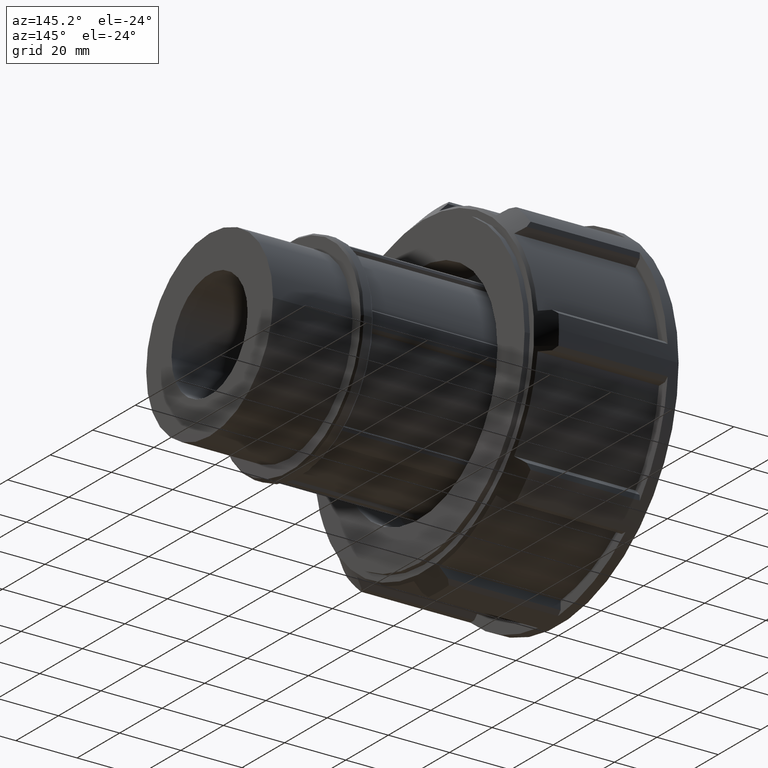
[diagram: clean part render]
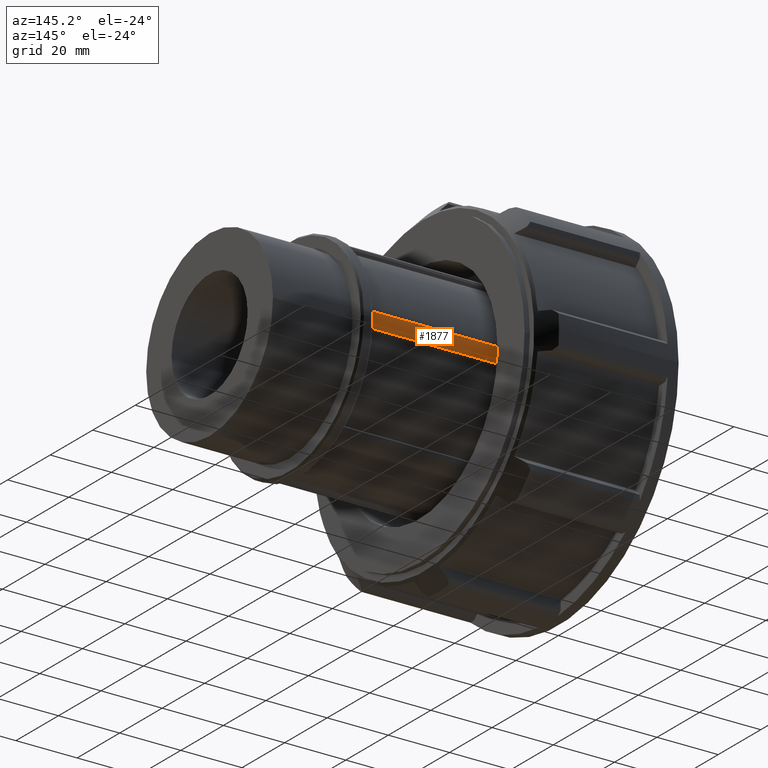
[diagram: same view with one face highlighted and labeled with its STEP entity id]
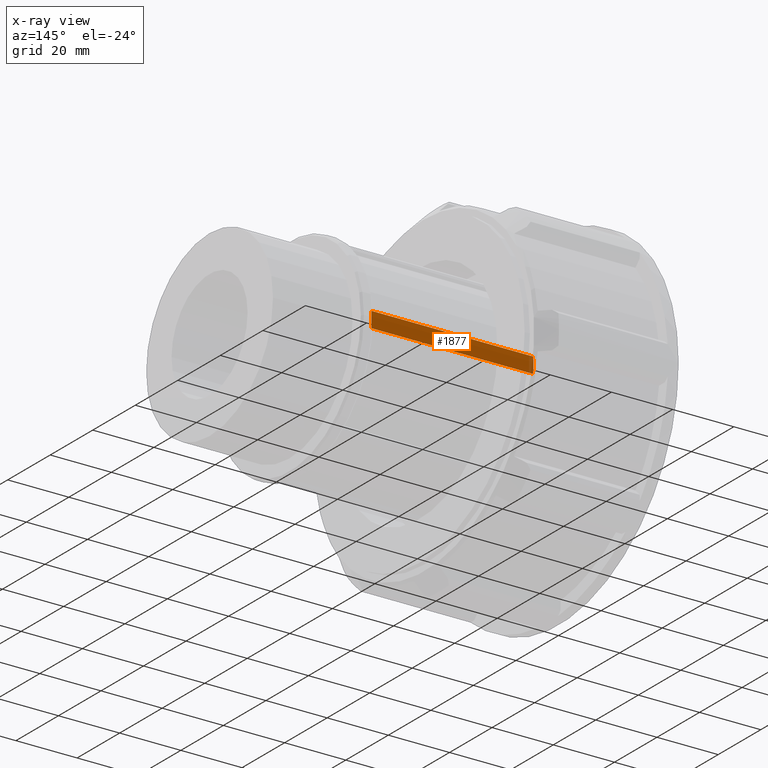
[diagram: x-ray of the same camera — body ghosted, the highlighted face saturated]
A machine part, auxiliary view. The second image highlights one B-rep face of the part: STEP entity #1877.
The next image is the same camera in x-ray: the body ghosted, the highlighted face saturated — about 3% of this face is hidden behind the body in this view.
In plain terms, the highlighted cylindrical surface (partial cylindrical patch) has radius 33.075 mm, axis along (-1, 0, 0).
Its self-contained STEP definition (entity closure, byte-faithful):
#98=CIRCLE('',#2002,33.075);
#104=CIRCLE('',#2013,33.075);
#165=CYLINDRICAL_SURFACE('',#2017,33.075);
#223=FACE_OUTER_BOUND('',#337,.T.);
#337=EDGE_LOOP('',(#1433,#1434,#1435,#1436));
#504=LINE('',#2899,#668);
#505=LINE('',#2902,#669);
#668=VECTOR('',#2352,52.9);
#669=VECTOR('',#2357,52.9);
#817=VERTEX_POINT('',#2866);
#818=VERTEX_POINT('',#2868);
#826=VERTEX_POINT('',#2890);
#827=VERTEX_POINT('',#2892);
#1038=EDGE_CURVE('',#817,#818,#98,.T.);
#1048=EDGE_CURVE('',#826,#827,#104,.T.);
#1052=EDGE_CURVE('',#818,#826,#504,.T.);
#1053=EDGE_CURVE('',#827,#817,#505,.T.);
#1433=ORIENTED_EDGE('',*,*,#1052,.F.);
#1434=ORIENTED_EDGE('',*,*,#1038,.F.);
#1435=ORIENTED_EDGE('',*,*,#1053,.F.);
#1436=ORIENTED_EDGE('',*,*,#1048,.F.);
#1877=ADVANCED_FACE('',(#223),#165,.T.);
#2002=AXIS2_PLACEMENT_3D('',#2869,#2319,#2320);
#2013=AXIS2_PLACEMENT_3D('',#2893,#2345,#2346);
#2017=AXIS2_PLACEMENT_3D('',#2904,#2359,#2360);
#2319=DIRECTION('center_axis',(-1.,0.,0.));
#2320=DIRECTION('ref_axis',(0.,0.,1.));
#2345=DIRECTION('center_axis',(1.,0.,0.));
#2346=DIRECTION('ref_axis',(0.,0.,1.));
#2352=DIRECTION('',(1.,0.,0.));
#2357=DIRECTION('',(-1.,0.,0.));
#2359=DIRECTION('center_axis',(-1.,0.,0.));
#2360=DIRECTION('ref_axis',(0.,0.,1.));
#2866=CARTESIAN_POINT('',(31.2,32.976083285721,2.55608218435778));
#2868=CARTESIAN_POINT('',(31.2,32.976083285721,-2.55608218435779));
#2869=CARTESIAN_POINT('Origin',(31.2,0.,0.));
#2890=CARTESIAN_POINT('',(84.1,32.976083285721,-2.55608218435779));
#2892=CARTESIAN_POINT('',(84.1,32.976083285721,2.55608218435778));
#2893=CARTESIAN_POINT('Origin',(84.1,0.,0.));
#2899=CARTESIAN_POINT('',(84.1,32.976083285721,-2.55608218435779));
#2902=CARTESIAN_POINT('',(84.1,32.976083285721,2.55608218435778));
#2904=CARTESIAN_POINT('Origin',(84.1,0.,0.));